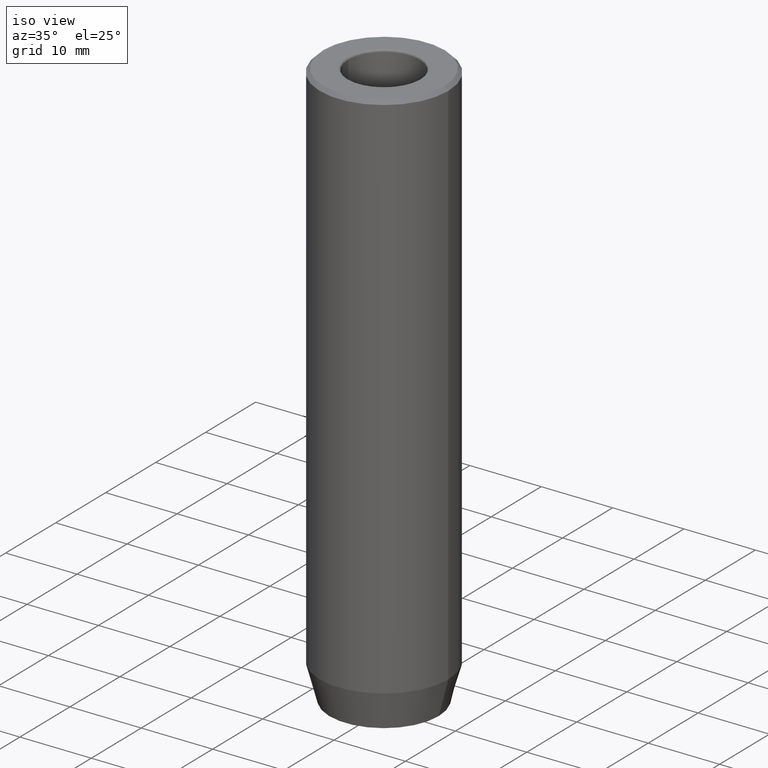
[diagram: clean part render]
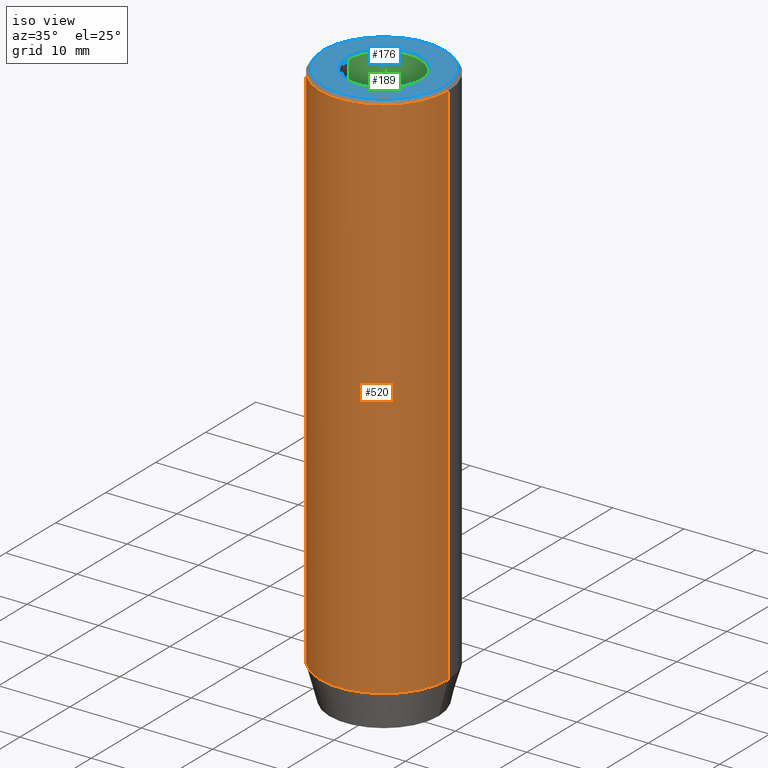
[diagram: same view with three faces highlighted in distinct colors, each labeled with its STEP entity id]
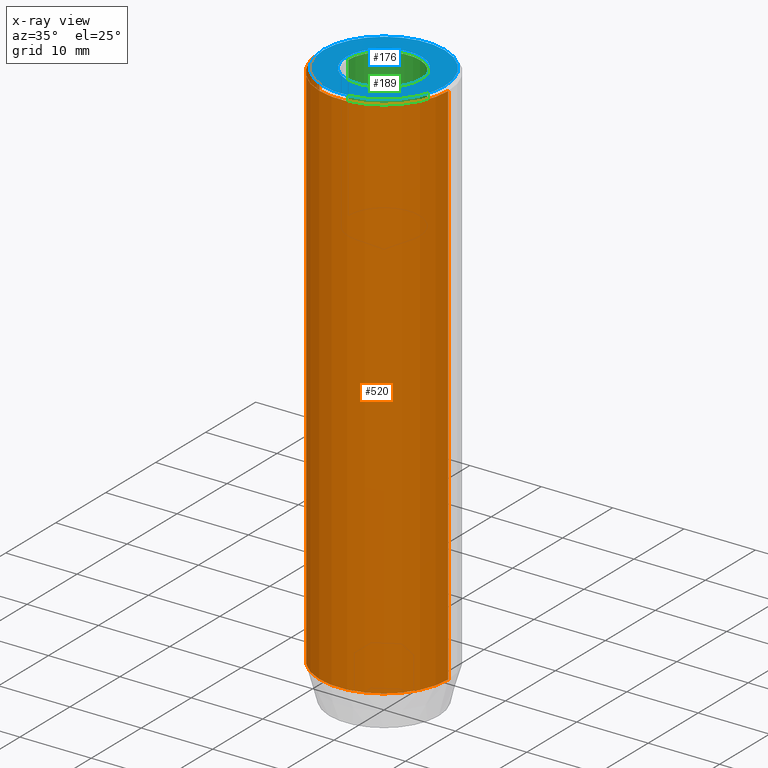
[diagram: x-ray of the same camera — body ghosted, the three highlighted faces saturated]
A machine part, iso view with three faces highlighted in distinct colors.
The next image is the same camera in x-ray (body ghosted, the three faces saturated) — at least one of them is partly hidden behind the body in this view.
Their STEP definitions:

[orange] entity #520 — the highlighted cylindrical surface (partial cylindrical patch) has radius 9 mm, axis along (-0, -0, 1).
#22 = AXIS2_PLACEMENT_3D ( 'NONE', #314, #281, #466 ) ;
#23 = ORIENTED_EDGE ( 'NONE', *, *, #210, .T. ) ;
#54 = CARTESIAN_POINT ( 'NONE',  ( 9.000000000000000000, 0.000000000000000000, 0.000000000000000000 ) ) ;
#60 = VECTOR ( 'NONE', #351, 1000.000000000000000 ) ;
#71 = VERTEX_POINT ( 'NONE', #103 ) ;
#80 = EDGE_CURVE ( 'NONE', #127, #71, #495, .T. ) ;
#88 = ORIENTED_EDGE ( 'NONE', *, *, #238, .T. ) ;
#91 = AXIS2_PLACEMENT_3D ( 'NONE', #549, #108, #310 ) ;
#92 = VERTEX_POINT ( 'NONE', #393 ) ;
#101 = CIRCLE ( 'NONE', #312, 9.000000000000000000 ) ;
#103 = CARTESIAN_POINT ( 'NONE',  ( 9.000000000000000000, 0.000000000000000000, -0.5000000000000023315 ) ) ;
#108 = DIRECTION ( 'NONE',  ( -0.000000000000000000, -0.000000000000000000, 1.000000000000000000 ) ) ;
#112 = LINE ( 'NONE', #122, #356 ) ;
#113 = CARTESIAN_POINT ( 'NONE',  ( 9.000000000000000000, 0.000000000000000000, -75.00000000000000000 ) ) ;
#122 = CARTESIAN_POINT ( 'NONE',  ( -9.000000000000000000, 1.102182119232617714E-15, 0.000000000000000000 ) ) ;
#127 = VERTEX_POINT ( 'NONE', #113 ) ;
#168 = CARTESIAN_POINT ( 'NONE',  ( -9.000000000000000000, 1.102182119232617714E-15, -0.5000000000000023315 ) ) ;
#186 = ORIENTED_EDGE ( 'NONE', *, *, #80, .T. ) ;
#210 = EDGE_CURVE ( 'NONE', #92, #127, #276, .T. ) ;
#223 = CARTESIAN_POINT ( 'NONE',  ( 0.000000000000000000, 0.000000000000000000, -0.5000000000000023315 ) ) ;
#231 = FACE_OUTER_BOUND ( 'NONE', #446, .T. ) ;
#238 = EDGE_CURVE ( 'NONE', #71, #491, #101, .T. ) ;
#267 = DIRECTION ( 'NONE',  ( -0.000000000000000000, -0.000000000000000000, 1.000000000000000000 ) ) ;
#268 = DIRECTION ( 'NONE',  ( 1.000000000000000000, 0.000000000000000000, 0.000000000000000000 ) ) ;
#276 = CIRCLE ( 'NONE', #91, 9.000000000000000000 ) ;
#281 = DIRECTION ( 'NONE',  ( -0.000000000000000000, -0.000000000000000000, 1.000000000000000000 ) ) ;
#310 = DIRECTION ( 'NONE',  ( 1.000000000000000000, 0.000000000000000000, 0.000000000000000000 ) ) ;
#312 = AXIS2_PLACEMENT_3D ( 'NONE', #223, #359, #268 ) ;
#314 = CARTESIAN_POINT ( 'NONE',  ( 0.000000000000000000, 0.000000000000000000, 0.000000000000000000 ) ) ;
#351 = DIRECTION ( 'NONE',  ( -0.000000000000000000, -0.000000000000000000, 1.000000000000000000 ) ) ;
#356 = VECTOR ( 'NONE', #267, 1000.000000000000000 ) ;
#359 = DIRECTION ( 'NONE',  ( 0.000000000000000000, 0.000000000000000000, -1.000000000000000000 ) ) ;
#383 = ORIENTED_EDGE ( 'NONE', *, *, #610, .F. ) ;
#393 = CARTESIAN_POINT ( 'NONE',  ( -9.000000000000000000, 1.102182119232617714E-15, -75.00000000000000000 ) ) ;
#425 = CYLINDRICAL_SURFACE ( 'NONE', #22, 9.000000000000000000 ) ;
#446 = EDGE_LOOP ( 'NONE', ( #383, #23, #186, #88 ) ) ;
#466 = DIRECTION ( 'NONE',  ( 1.000000000000000000, 0.000000000000000000, 0.000000000000000000 ) ) ;
#491 = VERTEX_POINT ( 'NONE', #168 ) ;
#495 = LINE ( 'NONE', #54, #60 ) ;
#520 = ADVANCED_FACE ( 'NONE', ( #231 ), #425, .T. ) ;
#549 = CARTESIAN_POINT ( 'NONE',  ( 0.000000000000000000, 0.000000000000000000, -75.00000000000000000 ) ) ;
#610 = EDGE_CURVE ( 'NONE', #92, #491, #112, .T. ) ;

[blue] entity #176 — the highlighted planar face has unit normal (0, -0, 1).
#11 = FACE_BOUND ( 'NONE', #95, .T. ) ;
#15 = CARTESIAN_POINT ( 'NONE',  ( 0.000000000000000000, 0.000000000000000000, 0.000000000000000000 ) ) ;
#16 = DIRECTION ( 'NONE',  ( -0.000000000000000000, -0.000000000000000000, 1.000000000000000000 ) ) ;
#20 = DIRECTION ( 'NONE',  ( 1.000000000000000000, 0.000000000000000000, 0.000000000000000000 ) ) ;
#49 = AXIS2_PLACEMENT_3D ( 'NONE', #335, #195, #389 ) ;
#76 = CARTESIAN_POINT ( 'NONE',  ( -8.500000000000000000, 0.000000000000000000, 0.000000000000000000 ) ) ;
#95 = EDGE_LOOP ( 'NONE', ( #332, #370 ) ) ;
#104 = DIRECTION ( 'NONE',  ( 1.000000000000000000, 0.000000000000000000, 0.000000000000000000 ) ) ;
#161 = PLANE ( 'NONE',  #347 ) ;
#176 = ADVANCED_FACE ( 'NONE', ( #11, #604 ), #161, .T. ) ;
#193 = ORIENTED_EDGE ( 'NONE', *, *, #271, .T. ) ;
#195 = DIRECTION ( 'NONE',  ( 0.000000000000000000, 0.000000000000000000, -1.000000000000000000 ) ) ;
#196 = DIRECTION ( 'NONE',  ( 0.000000000000000000, 0.000000000000000000, -1.000000000000000000 ) ) ;
#214 = AXIS2_PLACEMENT_3D ( 'NONE', #469, #16, #20 ) ;
#233 = ORIENTED_EDGE ( 'NONE', *, *, #392, .T. ) ;
#249 = CIRCLE ( 'NONE', #339, 5.299999999999997158 ) ;
#266 = DIRECTION ( 'NONE',  ( -0.000000000000000000, -0.000000000000000000, 1.000000000000000000 ) ) ;
#271 = EDGE_CURVE ( 'NONE', #568, #515, #622, .T. ) ;
#275 = CARTESIAN_POINT ( 'NONE',  ( -5.299999999999997158, 6.490628035480969952E-16, 0.000000000000000000 ) ) ;
#315 = CARTESIAN_POINT ( 'NONE',  ( 0.000000000000000000, 0.000000000000000000, 0.000000000000000000 ) ) ;
#316 = DIRECTION ( 'NONE',  ( 1.000000000000000000, 0.000000000000000000, 0.000000000000000000 ) ) ;
#329 = VERTEX_POINT ( 'NONE', #275 ) ;
#332 = ORIENTED_EDGE ( 'NONE', *, *, #408, .T. ) ;
#335 = CARTESIAN_POINT ( 'NONE',  ( 0.000000000000000000, 0.000000000000000000, 0.000000000000000000 ) ) ;
#339 = AXIS2_PLACEMENT_3D ( 'NONE', #535, #196, #627 ) ;
#347 = AXIS2_PLACEMENT_3D ( 'NONE', #315, #600, #104 ) ;
#364 = EDGE_CURVE ( 'NONE', #329, #444, #249, .T. ) ;
#370 = ORIENTED_EDGE ( 'NONE', *, *, #364, .T. ) ;
#372 = EDGE_LOOP ( 'NONE', ( #233, #193 ) ) ;
#380 = CARTESIAN_POINT ( 'NONE',  ( 8.500000000000000000, 1.071565949253933927E-15, 0.000000000000000000 ) ) ;
#389 = DIRECTION ( 'NONE',  ( 1.000000000000000000, 0.000000000000000000, 0.000000000000000000 ) ) ;
#392 = EDGE_CURVE ( 'NONE', #515, #568, #403, .T. ) ;
#403 = CIRCLE ( 'NONE', #214, 8.500000000000000000 ) ;
#408 = EDGE_CURVE ( 'NONE', #444, #329, #437, .T. ) ;
#437 = CIRCLE ( 'NONE', #49, 5.299999999999997158 ) ;
#444 = VERTEX_POINT ( 'NONE', #562 ) ;
#448 = AXIS2_PLACEMENT_3D ( 'NONE', #15, #266, #316 ) ;
#469 = CARTESIAN_POINT ( 'NONE',  ( 0.000000000000000000, 0.000000000000000000, 0.000000000000000000 ) ) ;
#515 = VERTEX_POINT ( 'NONE', #76 ) ;
#535 = CARTESIAN_POINT ( 'NONE',  ( 0.000000000000000000, 0.000000000000000000, 0.000000000000000000 ) ) ;
#562 = CARTESIAN_POINT ( 'NONE',  ( 5.299999999999997158, 0.000000000000000000, 0.000000000000000000 ) ) ;
#568 = VERTEX_POINT ( 'NONE', #380 ) ;
#600 = DIRECTION ( 'NONE',  ( 0.000000000000000000, -0.000000000000000000, 1.000000000000000000 ) ) ;
#604 = FACE_OUTER_BOUND ( 'NONE', #372, .T. ) ;
#622 = CIRCLE ( 'NONE', #448, 8.500000000000000000 ) ;
#627 = DIRECTION ( 'NONE',  ( 1.000000000000000000, 0.000000000000000000, 0.000000000000000000 ) ) ;

[green] entity #189 — the highlighted cylindrical surface (partial cylindrical patch) has radius 5 mm, axis along (-0, -0, 1).
#9 = CARTESIAN_POINT ( 'NONE',  ( 4.999999999999995559, 0.000000000000000000, -20.00000000000000000 ) ) ;
#33 = ORIENTED_EDGE ( 'NONE', *, *, #349, .T. ) ;
#44 = EDGE_CURVE ( 'NONE', #129, #635, #452, .T. ) ;
#51 = CARTESIAN_POINT ( 'NONE',  ( 4.999999999999997335, 0.000000000000000000, 0.000000000000000000 ) ) ;
#98 = DIRECTION ( 'NONE',  ( -0.000000000000000000, -0.000000000000000000, 1.000000000000000000 ) ) ;
#129 = VERTEX_POINT ( 'NONE', #9 ) ;
#146 = ORIENTED_EDGE ( 'NONE', *, *, #636, .F. ) ;
#154 = DIRECTION ( 'NONE',  ( -0.000000000000000000, -0.000000000000000000, 1.000000000000000000 ) ) ;
#155 = CIRCLE ( 'NONE', #460, 4.999999999999995559 ) ;
#171 = CARTESIAN_POINT ( 'NONE',  ( -4.999999999999995559, 6.123233995736761352E-16, -20.00000000000000000 ) ) ;
#172 = CARTESIAN_POINT ( 'NONE',  ( 0.000000000000000000, 0.000000000000000000, -20.00000000000000000 ) ) ;
#183 = CIRCLE ( 'NONE', #541, 4.999999999999997335 ) ;
#189 = ADVANCED_FACE ( 'NONE', ( #407 ), #506, .F. ) ;
#191 = DIRECTION ( 'NONE',  ( -0.000000000000000000, -0.000000000000000000, 1.000000000000000000 ) ) ;
#202 = CARTESIAN_POINT ( 'NONE',  ( -4.999999999999997335, 6.123233995736763324E-16, 0.000000000000000000 ) ) ;
#224 = DIRECTION ( 'NONE',  ( -0.000000000000000000, -0.000000000000000000, 1.000000000000000000 ) ) ;
#244 = ORIENTED_EDGE ( 'NONE', *, *, #44, .T. ) ;
#270 = CARTESIAN_POINT ( 'NONE',  ( -4.999999999999997335, 6.123233995736763324E-16, -0.2999999999999999889 ) ) ;
#296 = LINE ( 'NONE', #202, #396 ) ;
#306 = EDGE_CURVE ( 'NONE', #129, #391, #155, .T. ) ;
#321 = EDGE_LOOP ( 'NONE', ( #146, #608, #244, #33 ) ) ;
#345 = DIRECTION ( 'NONE',  ( -0.000000000000000000, -0.000000000000000000, 1.000000000000000000 ) ) ;
#349 = EDGE_CURVE ( 'NONE', #635, #484, #183, .T. ) ;
#352 = DIRECTION ( 'NONE',  ( 1.000000000000000000, 0.000000000000000000, 0.000000000000000000 ) ) ;
#353 = VECTOR ( 'NONE', #98, 1000.000000000000000 ) ;
#391 = VERTEX_POINT ( 'NONE', #171 ) ;
#396 = VECTOR ( 'NONE', #345, 1000.000000000000000 ) ;
#407 = FACE_OUTER_BOUND ( 'NONE', #321, .T. ) ;
#445 = CARTESIAN_POINT ( 'NONE',  ( 0.000000000000000000, 0.000000000000000000, -0.2999999999999999889 ) ) ;
#452 = LINE ( 'NONE', #51, #353 ) ;
#460 = AXIS2_PLACEMENT_3D ( 'NONE', #172, #224, #517 ) ;
#484 = VERTEX_POINT ( 'NONE', #270 ) ;
#485 = AXIS2_PLACEMENT_3D ( 'NONE', #597, #154, #352 ) ;
#496 = CARTESIAN_POINT ( 'NONE',  ( 4.999999999999997335, 0.000000000000000000, -0.2999999999999999889 ) ) ;
#506 = CYLINDRICAL_SURFACE ( 'NONE', #485, 4.999999999999997335 ) ;
#517 = DIRECTION ( 'NONE',  ( 1.000000000000000000, 0.000000000000000000, 0.000000000000000000 ) ) ;
#541 = AXIS2_PLACEMENT_3D ( 'NONE', #445, #191, #582 ) ;
#582 = DIRECTION ( 'NONE',  ( 1.000000000000000000, 0.000000000000000000, 0.000000000000000000 ) ) ;
#597 = CARTESIAN_POINT ( 'NONE',  ( 0.000000000000000000, 0.000000000000000000, 0.000000000000000000 ) ) ;
#608 = ORIENTED_EDGE ( 'NONE', *, *, #306, .F. ) ;
#635 = VERTEX_POINT ( 'NONE', #496 ) ;
#636 = EDGE_CURVE ( 'NONE', #391, #484, #296, .T. ) ;